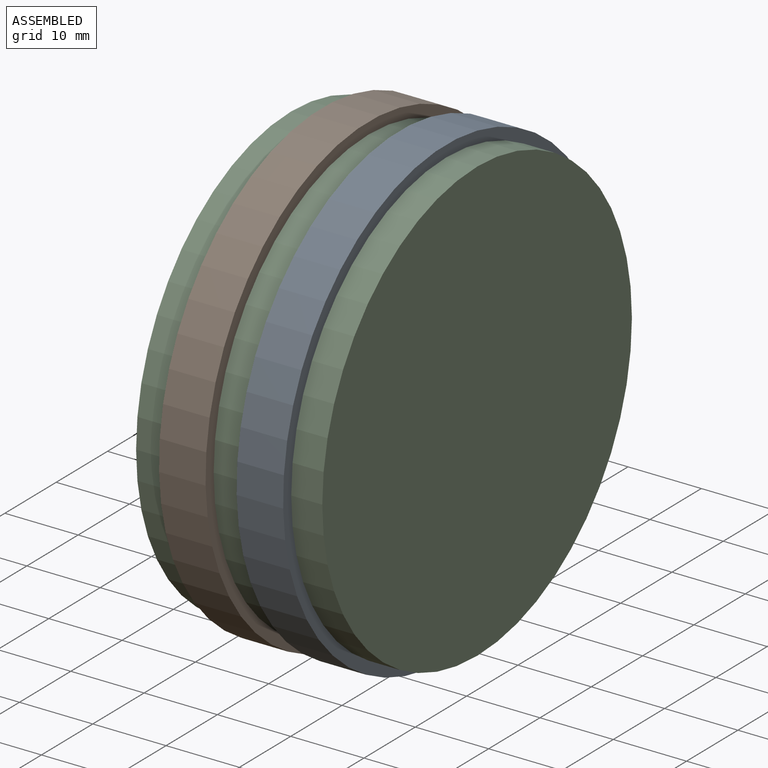
[diagram: assembled view]
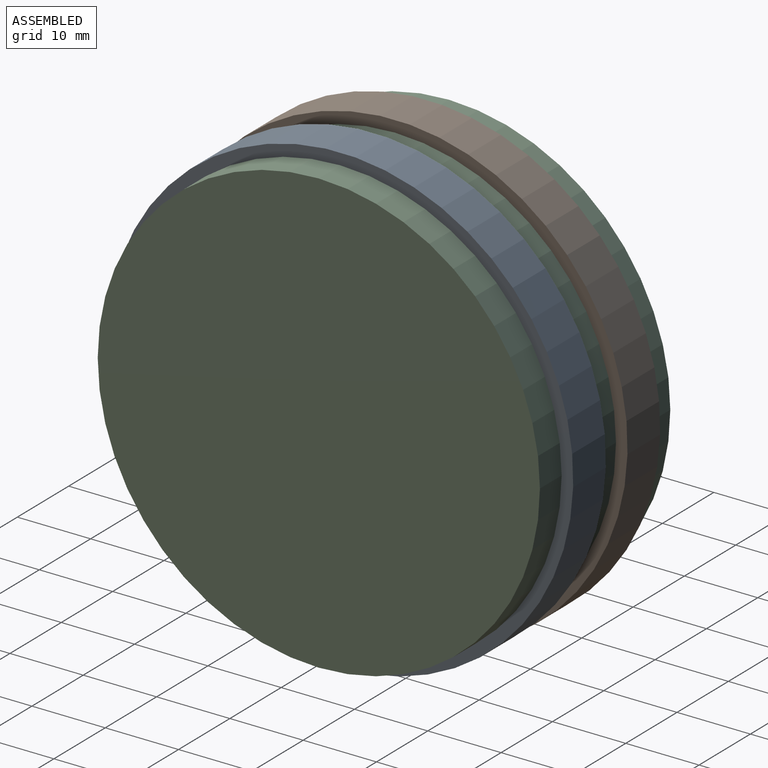
[diagram: assembled view, second angle]
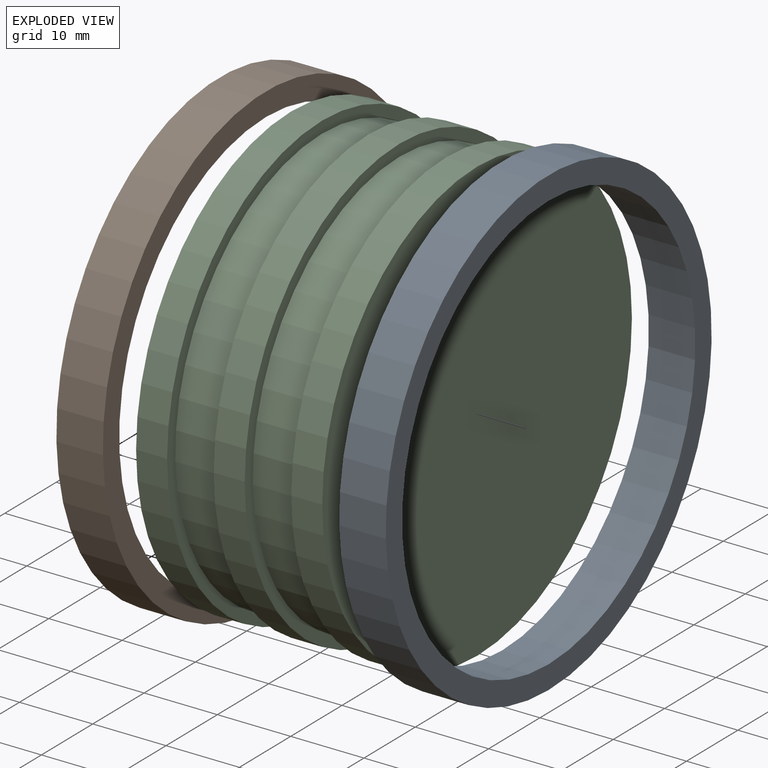
[diagram: exploded view]
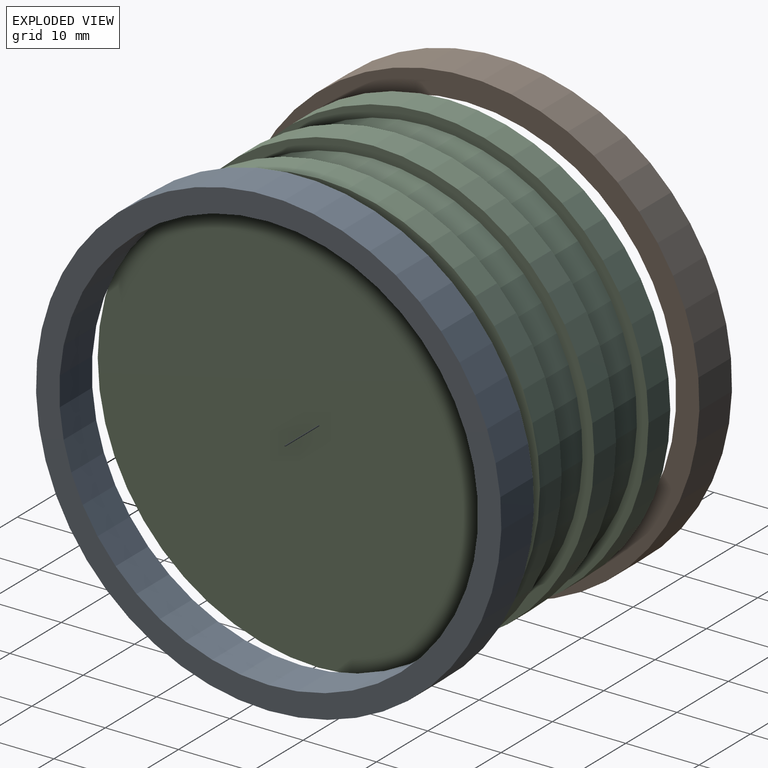
[diagram: exploded view, second angle]
ASSEMBLY  parts=3 mates=2
PART A: 4 faces, bbox 6.4x63.5x63.5 mm
  f0: plane 63.5x63.5mm, normal (-1,0,0), area 601.7mm2, adj f1,f3
  f1: cylinder r=28.57mm len=57.15mm, axis (1,0,0), area 1140.1mm2, adj f0,f2
  f2: plane 63.5x63.5mm, normal (1,0,0), area 601.7mm2, adj f1,f3
  f3: cylinder r=31.75mm len=63.5mm, axis (1,0,0), area 1266.8mm2, adj f0,f2
PART B: same geometry as A
PART C: 13 faces, bbox 25.4x60.3x60.3 mm
  f0: cylinder r=3.17mm len=12.7mm, axis (-1,0,0), area 253.4mm2, adj f1,f12
  f1: plane 6.35x6.35mm, normal (-1,0,0), area 31.7mm2, adj f0
  f2: plane 60.33x60.33mm, normal (1,0,0), area 2858.1mm2, adj f3
  f3: cylinder r=30.16mm len=60.33mm, axis (-1,0,0), area 802.3mm2, adj f2,f4
  f4: plane 60.33x60.33mm, normal (-1,0,0), area 292.9mm2, adj f3,f5
  f5: cylinder r=28.57mm len=57.15mm, axis (-1,0,0), area 1140.1mm2, adj f4,f6
  f6: plane 60.33x60.33mm, normal (1,0,0), area 292.9mm2, adj f5,f7
  f7: cylinder r=30.16mm len=60.33mm, axis (-1,0,0), area 802.3mm2, adj f6,f8
  f8: plane 60.33x60.33mm, normal (-1,0,0), area 292.9mm2, adj f7,f9
  f9: cylinder r=28.57mm len=57.15mm, axis (-1,0,0), area 1140.1mm2, adj f8,f10
  f10: plane 60.33x60.33mm, normal (1,0,0), area 292.9mm2, adj f9,f11
  f11: cylinder r=30.16mm len=60.33mm, axis (-1,0,0), area 802.3mm2, adj f10,f12
  f12: plane 60.33x60.33mm, normal (-1,0,0), area 2826.5mm2, adj f0,f11
PLACE A t=(-7.99,-5.88,5.02)mm
PLACE B t=(-18.58,-5.88,5.02)mm
PLACE C t=(-18.58,-5.88,5.02)mm
MATE revolute A.f1 <-> C.f0  axis (-1,0,0) through (37.96,-5.88,5.02)mm
MATE revolute B.f1 <-> C.f0  axis (1,0,0) through (33.73,-5.88,5.02)mm
